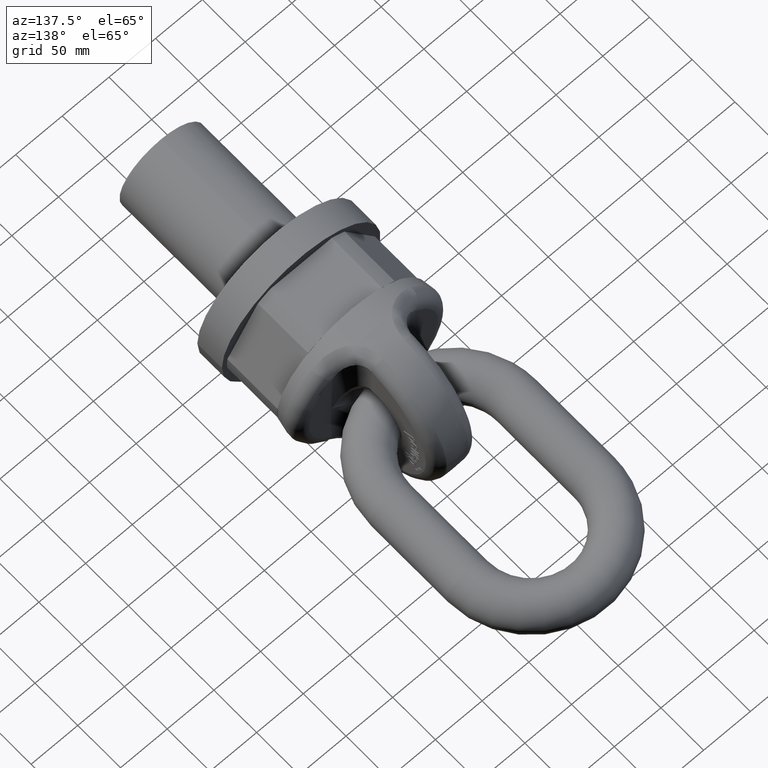
[diagram: clean part render]
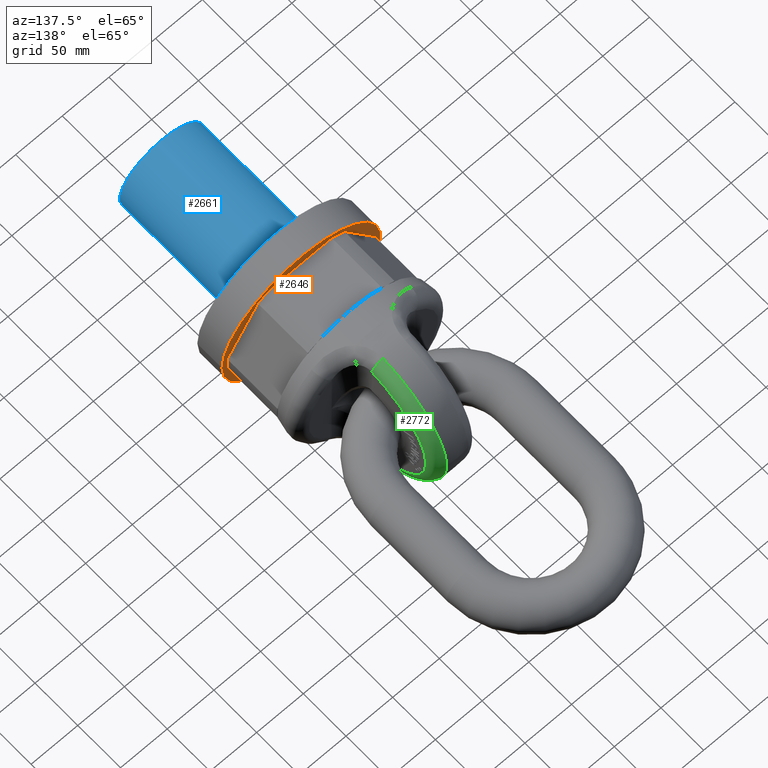
[diagram: same view with three faces highlighted in distinct colors, each labeled with its STEP entity id]
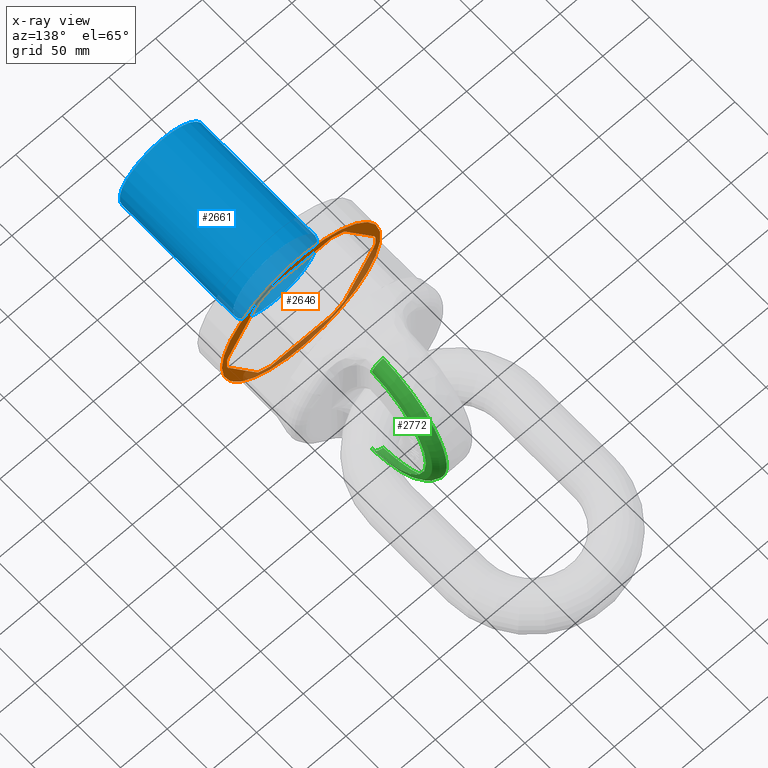
[diagram: x-ray of the same camera — body ghosted, the three highlighted faces saturated]
A machine part, auxiliary view with three faces highlighted in distinct colors.
The next image is the same camera in x-ray (body ghosted, the three faces saturated) — at least one of them is partly hidden behind the body in this view.
Their STEP definitions:

[orange] entity #2646 — the highlighted planar face has unit normal (-0, 1, 0).
#2041=LINE('',#6577,#2297);
#2042=LINE('',#6582,#2298);
#2043=LINE('',#6586,#2299);
#2044=LINE('',#6590,#2300);
#2045=LINE('',#6594,#2301);
#2046=LINE('',#6598,#2302);
#2297=VECTOR('',#5819,1.);
#2298=VECTOR('',#5822,1.);
#2299=VECTOR('',#5825,1.);
#2300=VECTOR('',#5828,1.);
#2301=VECTOR('',#5831,1.);
#2302=VECTOR('',#5834,1.);
#2646=ADVANCED_FACE('',(#2995,#2996),#2889,.T.);
#2889=PLANE('',#5614);
#2995=FACE_BOUND('',#3067,.T.);
#2996=FACE_BOUND('',#3068,.T.);
#3067=EDGE_LOOP('',(#3353));
#3068=EDGE_LOOP('',(#3354,#3355,#3356,#3357,#3358,#3359,#3360,#3361,#3362,
#3363,#3364,#3365));
#3353=ORIENTED_EDGE('',*,*,#4943,.F.);
#3354=ORIENTED_EDGE('',*,*,#4944,.F.);
#3355=ORIENTED_EDGE('',*,*,#4945,.T.);
#3356=ORIENTED_EDGE('',*,*,#4946,.F.);
#3357=ORIENTED_EDGE('',*,*,#4947,.T.);
#3358=ORIENTED_EDGE('',*,*,#4948,.F.);
#3359=ORIENTED_EDGE('',*,*,#4949,.T.);
#3360=ORIENTED_EDGE('',*,*,#4950,.F.);
#3361=ORIENTED_EDGE('',*,*,#4951,.T.);
#3362=ORIENTED_EDGE('',*,*,#4952,.F.);
#3363=ORIENTED_EDGE('',*,*,#4953,.T.);
#3364=ORIENTED_EDGE('',*,*,#4954,.F.);
#3365=ORIENTED_EDGE('',*,*,#4955,.T.);
#4545=VERTEX_POINT('',#6576);
#4546=VERTEX_POINT('',#6578);
#4547=VERTEX_POINT('',#6579);
#4548=VERTEX_POINT('',#6581);
#4549=VERTEX_POINT('',#6583);
#4550=VERTEX_POINT('',#6585);
#4551=VERTEX_POINT('',#6587);
#4552=VERTEX_POINT('',#6589);
#4553=VERTEX_POINT('',#6591);
#4554=VERTEX_POINT('',#6593);
#4555=VERTEX_POINT('',#6595);
#4556=VERTEX_POINT('',#6597);
#4557=VERTEX_POINT('',#6599);
#4943=EDGE_CURVE('',#4545,#4545,#5539,.T.);
#4944=EDGE_CURVE('',#4546,#4547,#2041,.T.);
#4945=EDGE_CURVE('',#4546,#4548,#5540,.T.);
#4946=EDGE_CURVE('',#4549,#4548,#2042,.T.);
#4947=EDGE_CURVE('',#4549,#4550,#5541,.T.);
#4948=EDGE_CURVE('',#4551,#4550,#2043,.T.);
#4949=EDGE_CURVE('',#4551,#4552,#5542,.T.);
#4950=EDGE_CURVE('',#4553,#4552,#2044,.T.);
#4951=EDGE_CURVE('',#4553,#4554,#5543,.T.);
#4952=EDGE_CURVE('',#4555,#4554,#2045,.T.);
#4953=EDGE_CURVE('',#4555,#4556,#5544,.T.);
#4954=EDGE_CURVE('',#4557,#4556,#2046,.T.);
#4955=EDGE_CURVE('',#4557,#4547,#5545,.T.);
#5539=CIRCLE('',#5607,85.);
#5540=CIRCLE('',#5608,79.5299995808709);
#5541=CIRCLE('',#5609,79.5299995808709);
#5542=CIRCLE('',#5610,79.5299995808709);
#5543=CIRCLE('',#5611,79.5299995808709);
#5544=CIRCLE('',#5612,79.5299995808709);
#5545=CIRCLE('',#5613,79.5299995808709);
#5607=AXIS2_PLACEMENT_3D('',#6575,#5817,#5818);
#5608=AXIS2_PLACEMENT_3D('',#6580,#5820,#5821);
#5609=AXIS2_PLACEMENT_3D('',#6584,#5823,#5824);
#5610=AXIS2_PLACEMENT_3D('',#6588,#5826,#5827);
#5611=AXIS2_PLACEMENT_3D('',#6592,#5829,#5830);
#5612=AXIS2_PLACEMENT_3D('',#6596,#5832,#5833);
#5613=AXIS2_PLACEMENT_3D('',#6600,#5835,#5836);
#5614=AXIS2_PLACEMENT_3D('',#6601,#5837,#5838);
#5817=DIRECTION('',(5.39262084851817E-17,-1.,0.));
#5818=DIRECTION('',(1.,4.08170229641602E-17,0.));
#5819=DIRECTION('',(0.5,2.69631042425909E-17,-0.866025403784439));
#5820=DIRECTION('',(5.39262084851817E-17,-1.,0.));
#5821=DIRECTION('',(-1.,-4.36243803626035E-17,0.));
#5822=DIRECTION('',(1.,5.39262084851817E-17,0.));
#5823=DIRECTION('',(5.39262084851817E-17,-1.,0.));
#5824=DIRECTION('',(-1.,-4.36243803626035E-17,0.));
#5825=DIRECTION('',(0.5,2.69631042425909E-17,0.866025403784439));
#5826=DIRECTION('',(5.39262084851817E-17,-1.,0.));
#5827=DIRECTION('',(-1.,-4.36243803626035E-17,0.));
#5828=DIRECTION('',(-0.5,-2.69631042425909E-17,0.866025403784439));
#5829=DIRECTION('',(5.39262084851817E-17,-1.,0.));
#5830=DIRECTION('',(-1.,-4.36243803626035E-17,0.));
#5831=DIRECTION('',(-1.,-5.39262084851817E-17,0.));
#5832=DIRECTION('',(5.39262084851817E-17,-1.,0.));
#5833=DIRECTION('',(-1.,-4.36243803626035E-17,0.));
#5834=DIRECTION('',(-0.5,-2.69631042425909E-17,-0.866025403784439));
#5835=DIRECTION('',(5.39262084851817E-17,-1.,0.));
#5836=DIRECTION('',(-1.,-4.36243803626035E-17,0.));
#5837=DIRECTION('',(-5.39262084851817E-17,1.,0.));
#5838=DIRECTION('',(-1.,-5.55111512312578E-17,0.));
#6575=CARTESIAN_POINT('',(-1.58183544889866E-15,29.3333333333333,0.));
#6576=CARTESIAN_POINT('',(85.,29.3333333333333,0.));
#6577=CARTESIAN_POINT('',(84.0368417743718,29.3333333333333,-0.556079660838679));
#6578=CARTESIAN_POINT('',(46.4408114203888,29.3333333333333,64.5621550751616));
#6579=CARTESIAN_POINT('',(79.1328721283548,29.3333333333333,7.93784492483828));
#6580=CARTESIAN_POINT('',(-7.1845945549978E-16,29.3333333333333,0.));
#6581=CARTESIAN_POINT('',(32.692060707966,29.3333333333333,72.5));
#6582=CARTESIAN_POINT('',(85.,29.3333333333333,72.5));
#6583=CARTESIAN_POINT('',(-32.692060707966,29.3333333333333,72.5));
#6584=CARTESIAN_POINT('',(-7.1845945549978E-16,29.3333333333333,0.));
#6585=CARTESIAN_POINT('',(-46.4408114203888,29.3333333333333,64.5621550751616));
#6586=CARTESIAN_POINT('',(-41.5368417743719,29.3333333333333,73.0560796608386));
#6587=CARTESIAN_POINT('',(-79.1328721283548,29.3333333333333,7.93784492483835));
#6588=CARTESIAN_POINT('',(-7.1845945549978E-16,29.3333333333333,0.));
#6589=CARTESIAN_POINT('',(-79.1328721283548,29.3333333333333,-7.93784492483828));
#6590=CARTESIAN_POINT('',(-41.5368417743719,29.3333333333333,-73.0560796608386));
#6591=CARTESIAN_POINT('',(-46.4408114203888,29.3333333333333,-64.5621550751616));
#6592=CARTESIAN_POINT('',(-7.1845945549978E-16,29.3333333333333,0.));
#6593=CARTESIAN_POINT('',(-32.692060707966,29.3333333333333,-72.5));
#6594=CARTESIAN_POINT('',(85.,29.3333333333333,-72.5));
#6595=CARTESIAN_POINT('',(32.692060707966,29.3333333333333,-72.5));
#6596=CARTESIAN_POINT('',(-7.1845945549978E-16,29.3333333333333,0.));
#6597=CARTESIAN_POINT('',(46.4408114203888,29.3333333333333,-64.5621550751616));
#6598=CARTESIAN_POINT('',(84.0368417743718,29.3333333333333,0.556079660838673));
#6599=CARTESIAN_POINT('',(79.1328721283548,29.3333333333333,-7.93784492483831));
#6600=CARTESIAN_POINT('',(-7.1845945549978E-16,29.3333333333333,0.));
#6601=CARTESIAN_POINT('',(85.,29.3333333333333,0.));

[blue] entity #2661 — the highlighted cylindrical surface (bore or boss wall) has radius 45 mm, axis along (0, 1, 0).
#2027=CYLINDRICAL_SURFACE('',#5638,45.);
#2661=ADVANCED_FACE('',(#2999,#3000),#2027,.T.);
#2999=FACE_BOUND('',#3084,.T.);
#3000=FACE_BOUND('',#3085,.T.);
#3084=EDGE_LOOP('',(#3428));
#3085=EDGE_LOOP('',(#3429));
#3428=ORIENTED_EDGE('',*,*,#4981,.T.);
#3429=ORIENTED_EDGE('',*,*,#4982,.T.);
#4571=VERTEX_POINT('',#6655);
#4572=VERTEX_POINT('',#6657);
#4981=EDGE_CURVE('',#4571,#4571,#5553,.T.);
#4982=EDGE_CURVE('',#4572,#4572,#5554,.T.);
#5553=CIRCLE('',#5636,45.);
#5554=CIRCLE('',#5637,45.);
#5636=AXIS2_PLACEMENT_3D('',#6654,#5899,#5900);
#5637=AXIS2_PLACEMENT_3D('',#6656,#5901,#5902);
#5638=AXIS2_PLACEMENT_3D('',#6658,#5903,#5904);
#5899=DIRECTION('',(5.39262084851817E-17,-1.,0.));
#5900=DIRECTION('',(1.,5.30054395437358E-17,0.));
#5901=DIRECTION('',(0.,1.,0.));
#5902=DIRECTION('',(0.,0.,1.));
#5903=DIRECTION('',(0.,1.,0.));
#5904=DIRECTION('',(0.,0.,1.));
#6654=CARTESIAN_POINT('',(0.,-1.,0.));
#6655=CARTESIAN_POINT('',(45.,-0.999999999999999,0.));
#6656=CARTESIAN_POINT('',(0.,-134.,0.));
#6657=CARTESIAN_POINT('',(0.,-134.,45.));
#6658=CARTESIAN_POINT('',(0.,-135.,0.));

[green] entity #2772 — the highlighted toroidal blend (fillet) surface has major radius 71.807 mm and minor (blend) radius 12.5 mm.
#1799=TOROIDAL_SURFACE('',#5725,71.8070330817254,12.5);
#1916=FACE_OUTER_BOUND('',#3216,.T.);
#2772=ADVANCED_FACE('',(#1916),#1799,.T.);
#3216=EDGE_LOOP('',(#3980,#3981,#3982,#3983));
#3980=ORIENTED_EDGE('',*,*,#5264,.T.);
#3981=ORIENTED_EDGE('',*,*,#5079,.F.);
#3982=ORIENTED_EDGE('',*,*,#5266,.F.);
#3983=ORIENTED_EDGE('',*,*,#5011,.F.);
#4598=VERTEX_POINT('',#6789);
#4601=VERTEX_POINT('',#6794);
#4664=VERTEX_POINT('',#7110);
#4665=VERTEX_POINT('',#7112);
#5011=EDGE_CURVE('',#4601,#4598,#5560,.T.);
#5079=EDGE_CURVE('',#4664,#4665,#5567,.T.);
#5264=EDGE_CURVE('',#4601,#4665,#5577,.T.);
#5266=EDGE_CURVE('',#4598,#4664,#5579,.T.);
#5560=CIRCLE('',#5648,71.8070330817254);
#5567=CIRCLE('',#5659,84.1875560268504);
#5577=CIRCLE('',#5722,12.5);
#5579=CIRCLE('',#5724,12.5);
#5648=AXIS2_PLACEMENT_3D('',#6795,#5931,#5932);
#5659=AXIS2_PLACEMENT_3D('',#7111,#5981,#5982);
#5722=AXIS2_PLACEMENT_3D('',#8178,#6233,#6234);
#5724=AXIS2_PLACEMENT_3D('',#8234,#6237,#6238);
#5725=AXIS2_PLACEMENT_3D('',#8235,#6239,#6240);
#5931=DIRECTION('',(1.,-2.80359349652817E-16,0.));
#5932=DIRECTION('',(2.89897532572188E-16,1.,0.));
#5981=DIRECTION('',(-1.,2.80359349652817E-16,0.));
#5982=DIRECTION('',(-2.8847646623605E-16,-1.,0.));
#6233=DIRECTION('',(0.,0.992969223484736,0.118372806049874));
#6234=DIRECTION('',(0.,-0.118372806049873,0.992969223484736));
#6237=DIRECTION('',(0.,-0.992969223484736,0.118372806049874));
#6238=DIRECTION('',(0.,-0.118372806049873,-0.992969223484736));
#6239=DIRECTION('',(1.,-2.80359349652817E-16,0.));
#6240=DIRECTION('',(2.88067647216726E-16,1.,0.));
#6789=CARTESIAN_POINT('',(22.5,136.5,71.3021738799036));
#6794=CARTESIAN_POINT('',(22.5,136.5,-71.3021738799036));
#6795=CARTESIAN_POINT('',(22.5,128.,0.));
#7110=CARTESIAN_POINT('',(11.7241379310345,137.965517241379,83.5956521350594));
#7111=CARTESIAN_POINT('',(11.7241379310345,128.,0.));
#7112=CARTESIAN_POINT('',(11.7241379310345,137.965517241379,-83.5956521350594));
#8178=CARTESIAN_POINT('',(9.99999999999999,136.5,-71.3021738799036));
#8234=CARTESIAN_POINT('',(9.99999999999999,136.5,71.3021738799036));
#8235=CARTESIAN_POINT('',(9.99999999999999,128.,0.));